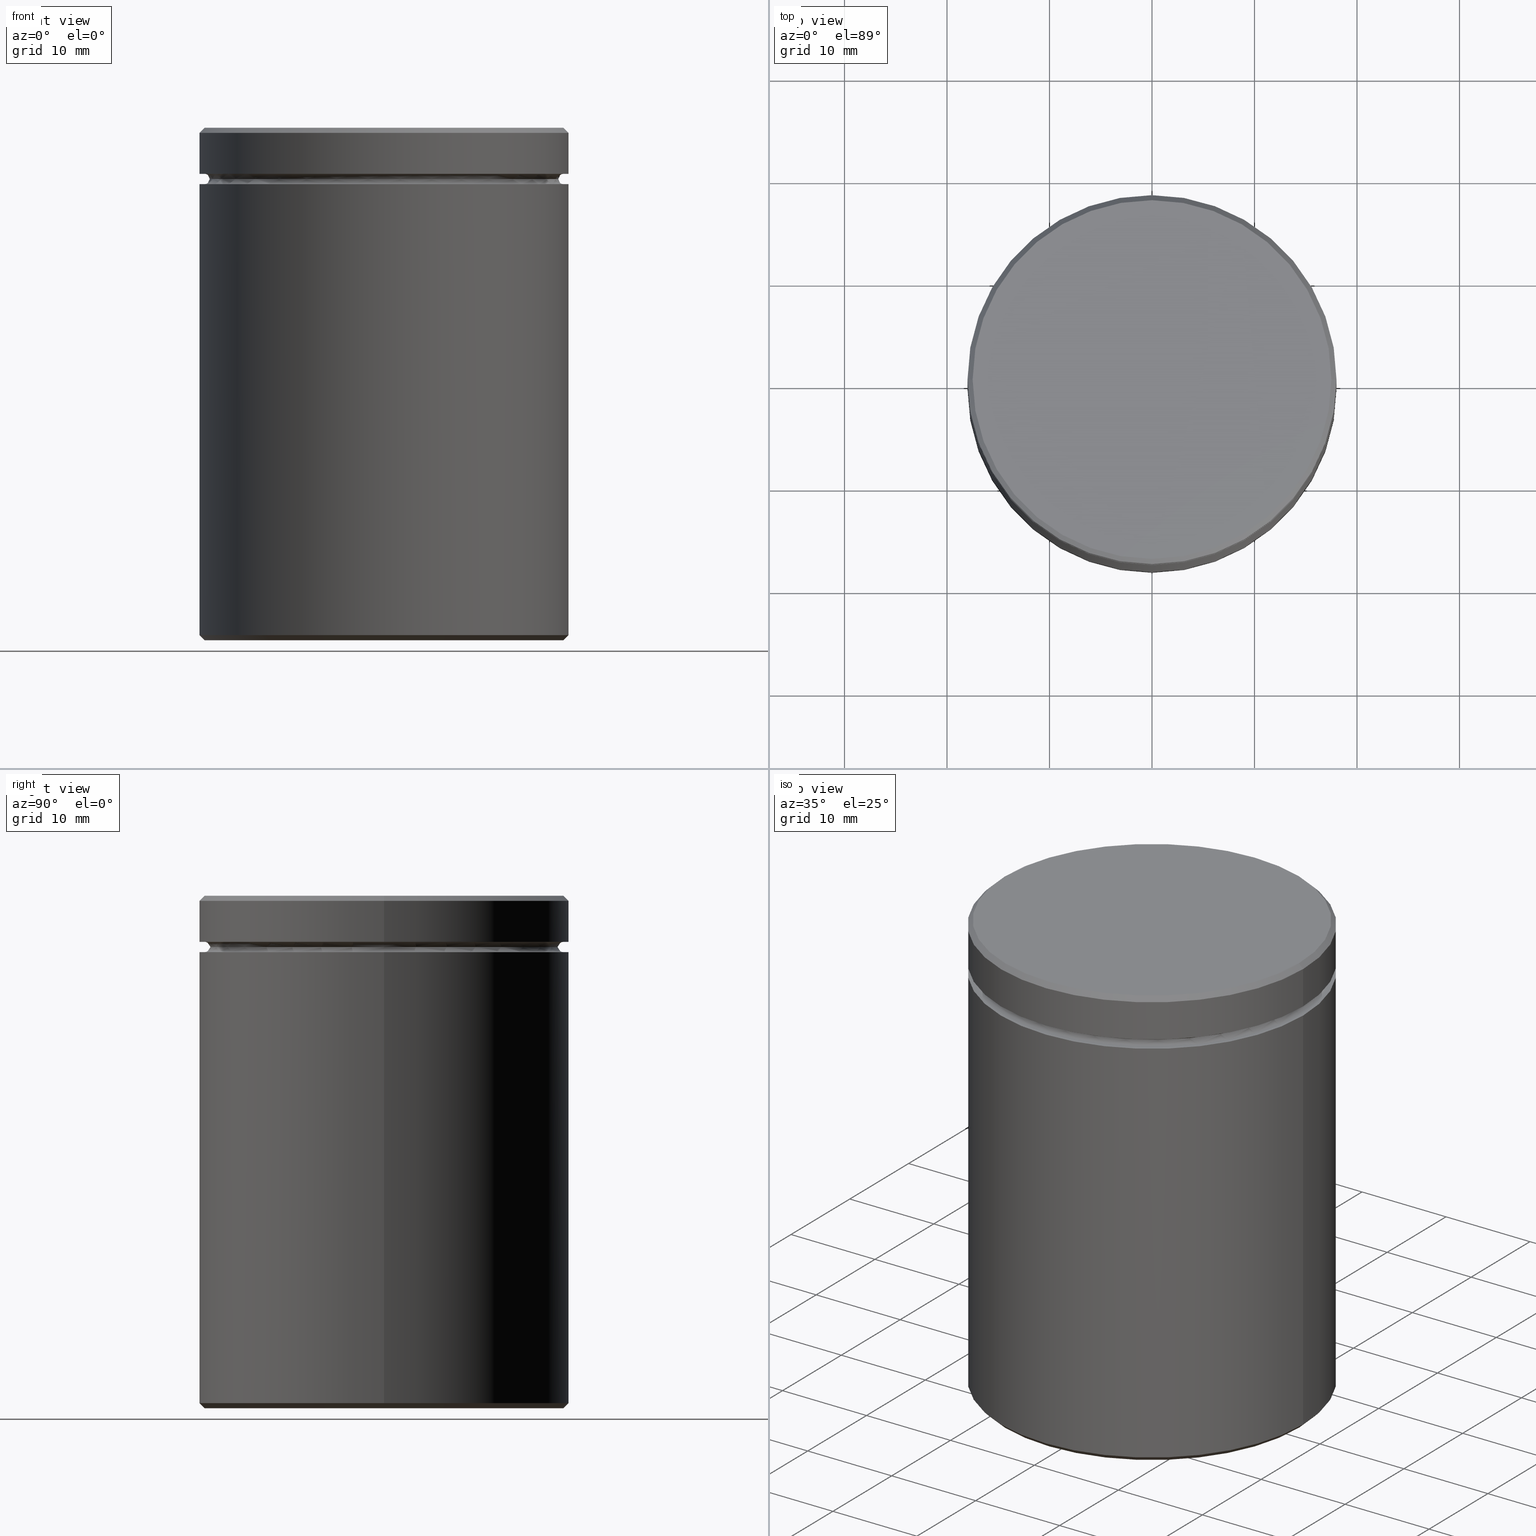
[diagram: canonical four-view strip — front | top / right | iso, engineering-drawing reading convention]
A machine part, canonical four-view strip (front | top / right | iso — engineering-drawing reading convention). The complete STEP part file that produces these views, byte-faithful:
ISO-10303-21;
HEADER;
FILE_DESCRIPTION (( 'STEP AP203' ),
    '1' );
FILE_NAME ('8bd4.STEP',
    '2024-01-02T17:57:47',
    ( '' ),
    ( '' ),
    'SwSTEP 2.0',
    'SolidWorks 2019',
    '' );
FILE_SCHEMA (( 'CONFIG_CONTROL_DESIGN' ));
ENDSEC;

DATA;
#1 = ORGANIZATION ( 'NEUR�EN�', 'NEUR�EN�', '' ) ;
#2 = ORIENTED_EDGE ( 'NONE', *, *, #419, .T. ) ;
#3 = FACE_OUTER_BOUND ( 'NONE', #231, .T. ) ;
#4 = ORIENTED_EDGE ( 'NONE', *, *, #179, .F. ) ;
#5 = EDGE_LOOP ( 'NONE', ( #475, #341, #552, #208 ) ) ;
#6 = PERSON_AND_ORGANIZATION_ROLE ( 'classification_officer' ) ;
#7 = DIRECTION ( 'NONE',  ( -0.000000000000000000, -0.000000000000000000, 1.000000000000000000 ) ) ;
#8 = DIRECTION ( 'NONE',  ( 1.000000000000000000, 0.000000000000000000, 0.000000000000000000 ) ) ;
#9 = EDGE_CURVE ( 'NONE', #113, #339, #252, .T. ) ;
#10 = AXIS2_PLACEMENT_3D ( 'NONE', #82, #288, #547 ) ;
#11 = EDGE_CURVE ( 'NONE', #449, #253, #263, .T. ) ;
#12 = ORIENTED_EDGE ( 'NONE', *, *, #114, .T. ) ;
#13 = LINE ( 'NONE', #500, #28 ) ;
#14 = DIRECTION ( 'NONE',  ( -0.000000000000000000, -0.000000000000000000, 1.000000000000000000 ) ) ;
#15 = LINE ( 'NONE', #104, #275 ) ;
#16 = AXIS2_PLACEMENT_3D ( 'NONE', #165, #111, #74 ) ;
#17 = ORIENTED_EDGE ( 'NONE', *, *, #258, .T. ) ;
#18 = DIRECTION ( 'NONE',  ( -0.000000000000000000, -0.000000000000000000, 1.000000000000000000 ) ) ;
#19 = DIRECTION ( 'NONE',  ( -1.000000000000000000, 0.000000000000000000, 0.000000000000000000 ) ) ;
#20 = CIRCLE ( 'NONE', #73, 16.99999999999999645 ) ;
#21 = VERTEX_POINT ( 'NONE', #143 ) ;
#22 = CC_DESIGN_APPROVAL ( #313, ( #410 ) ) ;
#23 = CARTESIAN_POINT ( 'NONE',  ( 0.000000000000000000, 0.000000000000000000, 0.000000000000000000 ) ) ;
#24 = CARTESIAN_POINT ( 'NONE',  ( 17.50000000000000000, 2.173748068486551641E-15, 0.000000000000000000 ) ) ;
#25 = ADVANCED_FACE ( 'NONE', ( #110, #366 ), #539, .T. ) ;
#26 = ORIENTED_EDGE ( 'NONE', *, *, #452, .T. ) ;
#27 = DIRECTION ( 'NONE',  ( -0.000000000000000000, -0.000000000000000000, -1.000000000000000000 ) ) ;
#28 = VECTOR ( 'NONE', #153, 1000.000000000000000 ) ;
#29 = CARTESIAN_POINT ( 'NONE',  ( 0.000000000000000000, 0.000000000000000000, -4.999999999999999112 ) ) ;
#30 = AXIS2_PLACEMENT_3D ( 'NONE', #210, #384, #556 ) ;
#31 = FACE_OUTER_BOUND ( 'NONE', #5, .T. ) ;
#32 = CARTESIAN_POINT ( 'NONE',  ( 18.00000000000000000, 0.000000000000000000, -49.50000000000000000 ) ) ;
#33 = DATE_AND_TIME ( #125, #545 ) ;
#34 = CARTESIAN_POINT ( 'NONE',  ( 0.000000000000000000, 0.000000000000000000, -4.999999999999999112 ) ) ;
#35 = PERSON_AND_ORGANIZATION_ROLE ( 'design_supplier' ) ;
#36 = ADVANCED_FACE ( 'NONE', ( #461, #65 ), #372, .T. ) ;
#37 = ORIENTED_EDGE ( 'NONE', *, *, #352, .T. ) ;
#38 = ADVANCED_FACE ( 'NONE', ( #308 ), #187, .T. ) ;
#39 = DATE_TIME_ROLE ( 'creation_date' ) ;
#40 = FACE_OUTER_BOUND ( 'NONE', #289, .T. ) ;
#41 = ORIENTED_EDGE ( 'NONE', *, *, #88, .F. ) ;
#42 = AXIS2_PLACEMENT_3D ( 'NONE', #505, #498, #61 ) ;
#43 = TOROIDAL_SURFACE ( 'NONE', #30, 17.49999999999999645, 0.5000000000000000000 ) ;
#44 = DIRECTION ( 'NONE',  ( -0.000000000000000000, -0.000000000000000000, 1.000000000000000000 ) ) ;
#45 = ORIENTED_EDGE ( 'NONE', *, *, #11, .F. ) ;
#46 = EDGE_LOOP ( 'NONE', ( #484, #103, #349, #364 ) ) ;
#47 = ADVANCED_FACE ( 'NONE', ( #568 ), #403, .T. ) ;
#48 = DIRECTION ( 'NONE',  ( -0.7071067811865451302, 8.659560562354903276E-17, 0.7071067811865500152 ) ) ;
#49 = EDGE_CURVE ( 'NONE', #390, #413, #151, .T. ) ;
#50 = AXIS2_PLACEMENT_3D ( 'NONE', #304, #476, #470 ) ;
#51 = CARTESIAN_POINT ( 'NONE',  ( 0.000000000000000000, 0.000000000000000000, -4.999999999999999112 ) ) ;
#52 = CIRCLE ( 'NONE', #441, 12.00000000000000178 ) ;
#53 = AXIS2_PLACEMENT_3D ( 'NONE', #496, #132, #67 ) ;
#54 = COORDINATED_UNIVERSAL_TIME_OFFSET ( 1, 0, .AHEAD. ) ;
#55 = CARTESIAN_POINT ( 'NONE',  ( 0.000000000000000000, 0.000000000000000000, -49.50000000000000000 ) ) ;
#56 = VERTEX_POINT ( 'NONE', #525 ) ;
#57 = DIRECTION ( 'NONE',  ( -0.000000000000000000, -0.000000000000000000, 1.000000000000000000 ) ) ;
#58 = EDGE_CURVE ( 'NONE', #449, #135, #212, .T. ) ;
#59 = ADVANCED_FACE ( 'NONE', ( #40 ), #319, .F. ) ;
#60 = DIRECTION ( 'NONE',  ( -1.000000000000000000, 0.000000000000000000, 0.000000000000000000 ) ) ;
#61 = DIRECTION ( 'NONE',  ( 1.000000000000000000, 0.000000000000000000, 0.000000000000000000 ) ) ;
#62 = ORIENTED_EDGE ( 'NONE', *, *, #486, .F. ) ;
#63 = ORIENTED_EDGE ( 'NONE', *, *, #519, .T. ) ;
#64 = FACE_OUTER_BOUND ( 'NONE', #224, .T. ) ;
#65 = FACE_BOUND ( 'NONE', #190, .T. ) ;
#66 = CIRCLE ( 'NONE', #389, 18.00000000000000000 ) ;
#67 = DIRECTION ( 'NONE',  ( -1.000000000000000000, -1.224646799147349509E-16, 0.000000000000000000 ) ) ;
#68 = CARTESIAN_POINT ( 'NONE',  ( 0.000000000000000000, 0.000000000000000000, -4.500000000000000888 ) ) ;
#69 = ORIENTED_EDGE ( 'NONE', *, *, #352, .F. ) ;
#70 = CARTESIAN_POINT ( 'NONE',  ( 18.00000000000000000, 0.000000000000000000, -49.50000000000000000 ) ) ;
#71 = ADVANCED_FACE ( 'NONE', ( #83 ), #261, .F. ) ;
#72 = DIRECTION ( 'NONE',  ( 1.000000000000000000, 0.000000000000000000, 0.000000000000000000 ) ) ;
#73 = AXIS2_PLACEMENT_3D ( 'NONE', #51, #57, #142 ) ;
#74 = DIRECTION ( 'NONE',  ( 1.000000000000000000, 0.000000000000000000, 0.000000000000000000 ) ) ;
#75 =( GEOMETRIC_REPRESENTATION_CONTEXT ( 3 ) GLOBAL_UNCERTAINTY_ASSIGNED_CONTEXT ( ( #401 ) ) GLOBAL_UNIT_ASSIGNED_CONTEXT ( ( #177, #315, #86 ) ) REPRESENTATION_CONTEXT ( 'NONE', 'WORKASPACE' ) );
#76 = EDGE_CURVE ( 'NONE', #255, #305, #225, .T. ) ;
#77 = ADVANCED_FACE ( 'NONE', ( #465 ), #124, .F. ) ;
#78 = DIRECTION ( 'NONE',  ( -0.000000000000000000, -0.000000000000000000, 1.000000000000000000 ) ) ;
#79 = DIRECTION ( 'NONE',  ( -1.000000000000000000, 0.000000000000000000, 0.000000000000000000 ) ) ;
#80 = CIRCLE ( 'NONE', #172, 12.00000000000000178 ) ;
#81 = CALENDAR_DATE ( 2024, 2, 1 ) ;
#82 = CARTESIAN_POINT ( 'NONE',  ( 0.000000000000000000, 0.000000000000000000, -5.500000000000000000 ) ) ;
#83 = FACE_OUTER_BOUND ( 'NONE', #146, .T. ) ;
#84 = PERSON_AND_ORGANIZATION ( #379, #1 ) ;
#85 = EDGE_CURVE ( 'NONE', #223, #404, #285, .T. ) ;
#86 =( NAMED_UNIT ( * ) SI_UNIT ( $, .STERADIAN. ) SOLID_ANGLE_UNIT ( ) );
#87 = ORIENTED_EDGE ( 'NONE', *, *, #114, .F. ) ;
#88 = EDGE_CURVE ( 'NONE', #305, #255, #66, .T. ) ;
#89 = EDGE_LOOP ( 'NONE', ( #490, #241 ) ) ;
#90 = DIRECTION ( 'NONE',  ( 1.000000000000000000, 0.000000000000000000, 0.000000000000000000 ) ) ;
#91 = AXIS2_PLACEMENT_3D ( 'NONE', #109, #245, #233 ) ;
#92 = PERSON_AND_ORGANIZATION ( #379, #1 ) ;
#93 = ORIENTED_EDGE ( 'NONE', *, *, #244, .T. ) ;
#94 = FACE_OUTER_BOUND ( 'NONE', #201, .T. ) ;
#95 = ORIENTED_EDGE ( 'NONE', *, *, #145, .F. ) ;
#96 = EDGE_LOOP ( 'NONE', ( #215, #527, #130, #248 ) ) ;
#97 = APPROVAL_DATE_TIME ( #330, #106 ) ;
#98 = DIRECTION ( 'NONE',  ( 0.000000000000000000, 0.000000000000000000, -1.000000000000000000 ) ) ;
#99 = CONICAL_SURFACE ( 'NONE', #424, 18.00000000000000000, 0.7853981633974447263 ) ;
#100 = CARTESIAN_POINT ( 'NONE',  ( 0.000000000000000000, 0.000000000000000000, 0.000000000000000000 ) ) ;
#101 = CC_DESIGN_PERSON_AND_ORGANIZATION_ASSIGNMENT ( #92, #6, ( #563 ) ) ;
#102 = CIRCLE ( 'NONE', #91, 17.50000000000000000 ) ;
#103 = ORIENTED_EDGE ( 'NONE', *, *, #334, .F. ) ;
#104 = CARTESIAN_POINT ( 'NONE',  ( -17.50000000000000000, 0.000000000000000000, 0.000000000000000000 ) ) ;
#105 = DIRECTION ( 'NONE',  ( -0.000000000000000000, -0.000000000000000000, 1.000000000000000000 ) ) ;
#106 = APPROVAL ( #184, 'NEUR�EN�' ) ;
#107 = EDGE_LOOP ( 'NONE', ( #359, #557, #93, #181 ) ) ;
#108 = ORIENTED_EDGE ( 'NONE', *, *, #360, .F. ) ;
#109 = CARTESIAN_POINT ( 'NONE',  ( 0.000000000000000000, 0.000000000000000000, -50.00000000000000000 ) ) ;
#110 = FACE_BOUND ( 'NONE', #89, .T. ) ;
#111 = DIRECTION ( 'NONE',  ( -0.000000000000000000, -0.000000000000000000, 1.000000000000000000 ) ) ;
#112 = AXIS2_PLACEMENT_3D ( 'NONE', #186, #44, #392 ) ;
#113 = VERTEX_POINT ( 'NONE', #157 ) ;
#114 = EDGE_CURVE ( 'NONE', #413, #390, #463, .T. ) ;
#115 = DIRECTION ( 'NONE',  ( 0.000000000000000000, 0.000000000000000000, -1.000000000000000000 ) ) ;
#116 = DIRECTION ( 'NONE',  ( 0.000000000000000000, -1.000000000000000000, 0.000000000000000000 ) ) ;
#117 = CARTESIAN_POINT ( 'NONE',  ( 0.000000000000000000, 0.000000000000000000, -4.500000000000000888 ) ) ;
#118 = AXIS2_PLACEMENT_3D ( 'NONE', #129, #7, #438 ) ;
#119 = CARTESIAN_POINT ( 'NONE',  ( 18.00000000000000000, 0.000000000000000000, 0.000000000000000000 ) ) ;
#120 = FACE_OUTER_BOUND ( 'NONE', #450, .T. ) ;
#121 = CARTESIAN_POINT ( 'NONE',  ( 0.000000000000000000, 0.000000000000000000, -18.00000000000000355 ) ) ;
#122 = CC_DESIGN_PERSON_AND_ORGANIZATION_ASSIGNMENT ( #136, #35, ( #333 ) ) ;
#123 = ORIENTED_EDGE ( 'NONE', *, *, #377, .F. ) ;
#124 = TOROIDAL_SURFACE ( 'NONE', #553, 17.49999999999999645, 0.5000000000000000000 ) ;
#125 = CALENDAR_DATE ( 2024, 2, 1 ) ;
#126 = DIRECTION ( 'NONE',  ( 1.000000000000000000, 0.000000000000000000, 0.000000000000000000 ) ) ;
#127 = APPROVAL_PERSON_ORGANIZATION ( #227, #313, #222 ) ;
#128 = MANIFOLD_SOLID_BREP ( 'Zaoblit1', #433 ) ;
#129 = CARTESIAN_POINT ( 'NONE',  ( 0.000000000000000000, 0.000000000000000000, 0.000000000000000000 ) ) ;
#130 = ORIENTED_EDGE ( 'NONE', *, *, #49, .F. ) ;
#131 = ORIENTED_EDGE ( 'NONE', *, *, #314, .F. ) ;
#132 = DIRECTION ( 'NONE',  ( -1.224646799147353207E-16, 1.000000000000000000, 0.000000000000000000 ) ) ;
#133 = ADVANCED_FACE ( 'NONE', ( #432 ), #522, .F. ) ;
#134 = ORIENTED_EDGE ( 'NONE', *, *, #58, .T. ) ;
#135 = VERTEX_POINT ( 'NONE', #370 ) ;
#136 = PERSON_AND_ORGANIZATION ( #379, #1 ) ;
#137 = EDGE_LOOP ( 'NONE', ( #294, #396 ) ) ;
#138 = AXIS2_PLACEMENT_3D ( 'NONE', #121, #508, #79 ) ;
#139 = FACE_OUTER_BOUND ( 'NONE', #226, .T. ) ;
#140 = CIRCLE ( 'NONE', #523, 17.50000000000000000 ) ;
#141 = ORIENTED_EDGE ( 'NONE', *, *, #452, .F. ) ;
#142 = DIRECTION ( 'NONE',  ( 1.000000000000000000, 0.000000000000000000, 0.000000000000000000 ) ) ;
#143 = CARTESIAN_POINT ( 'NONE',  ( -12.00000000000000178, 0.000000000000000000, -18.00000000000000355 ) ) ;
#144 = DATE_TIME_ROLE ( 'classification_date' ) ;
#145 = EDGE_CURVE ( 'NONE', #407, #318, #52, .T. ) ;
#146 = EDGE_LOOP ( 'NONE', ( #385, #239, #235, #243 ) ) ;
#147 = DIRECTION ( 'NONE',  ( -0.7071067811865376918, 0.000000000000000000, -0.7071067811865574537 ) ) ;
#148 = EDGE_CURVE ( 'NONE', #309, #135, #268, .T. ) ;
#149 = CARTESIAN_POINT ( 'NONE',  ( 0.000000000000000000, 0.000000000000000000, -5.000000000000000888 ) ) ;
#150 = CARTESIAN_POINT ( 'NONE',  ( -17.49999999999999645, 2.143131898507867854E-15, -4.999999999999999112 ) ) ;
#151 = CIRCLE ( 'NONE', #112, 18.00000000000000000 ) ;
#152 = AXIS2_PLACEMENT_3D ( 'NONE', #117, #300, #506 ) ;
#153 = DIRECTION ( 'NONE',  ( -0.000000000000000000, -0.000000000000000000, 1.000000000000000000 ) ) ;
#154 = LINE ( 'NONE', #206, #489 ) ;
#155 = ORIENTED_EDGE ( 'NONE', *, *, #542, .T. ) ;
#156 = ORIENTED_EDGE ( 'NONE', *, *, #148, .F. ) ;
#157 = CARTESIAN_POINT ( 'NONE',  ( 16.99999999999999645, 0.000000000000000000, -4.999999999999999112 ) ) ;
#158 = CARTESIAN_POINT ( 'NONE',  ( -18.00000000000000000, 2.204364238465235428E-15, 0.000000000000000000 ) ) ;
#159 = AXIS2_PLACEMENT_3D ( 'NONE', #100, #18, #416 ) ;
#160 = EDGE_LOOP ( 'NONE', ( #37, #63 ) ) ;
#161 = DIRECTION ( 'NONE',  ( 0.000000000000000000, 0.000000000000000000, -1.000000000000000000 ) ) ;
#162 = ORIENTED_EDGE ( 'NONE', *, *, #334, .T. ) ;
#163 = CARTESIAN_POINT ( 'NONE',  ( 17.49999999999999645, 0.000000000000000000, -4.999999999999999112 ) ) ;
#164 = DIRECTION ( 'NONE',  ( -0.000000000000000000, -0.000000000000000000, 1.000000000000000000 ) ) ;
#165 = CARTESIAN_POINT ( 'NONE',  ( 0.000000000000000000, 0.000000000000000000, -4.500000000000000888 ) ) ;
#166 = ADVANCED_FACE ( 'NONE', ( #120 ), #170, .T. ) ;
#167 = DIRECTION ( 'NONE',  ( 1.000000000000000000, 0.000000000000000000, 0.000000000000000000 ) ) ;
#168 = CIRCLE ( 'NONE', #488, 0.5000000000000004441 ) ;
#169 = DIRECTION ( 'NONE',  ( -0.000000000000000000, -0.000000000000000000, 1.000000000000000000 ) ) ;
#170 = CYLINDRICAL_SURFACE ( 'NONE', #453, 18.00000000000000000 ) ;
#171 = ORIENTED_EDGE ( 'NONE', *, *, #348, .T. ) ;
#172 = AXIS2_PLACEMENT_3D ( 'NONE', #264, #429, #559 ) ;
#173 = DIRECTION ( 'NONE',  ( 0.000000000000000000, 0.000000000000000000, 1.000000000000000000 ) ) ;
#174 = APPLICATION_CONTEXT ( 'configuration controlled 3d designs of mechanical parts and assemblies' ) ;
#175 = AXIS2_PLACEMENT_3D ( 'NONE', #536, #284, #60 ) ;
#176 = VERTEX_POINT ( 'NONE', #430 ) ;
#177 =( LENGTH_UNIT ( ) NAMED_UNIT ( * ) SI_UNIT ( .MILLI., .METRE. ) );
#178 = CIRCLE ( 'NONE', #246, 17.50000000000000000 ) ;
#179 = EDGE_CURVE ( 'NONE', #113, #404, #343, .T. ) ;
#180 = CIRCLE ( 'NONE', #152, 17.49999999999999645 ) ;
#181 = ORIENTED_EDGE ( 'NONE', *, *, #519, .F. ) ;
#182 = CYLINDRICAL_SURFACE ( 'NONE', #189, 18.00000000000000000 ) ;
#183 = ADVANCED_FACE ( 'NONE', ( #139 ), #250, .T. ) ;
#184 = APPROVAL_STATUS ( 'not_yet_approved' ) ;
#185 = AXIS2_PLACEMENT_3D ( 'NONE', #188, #412, #521 ) ;
#186 = CARTESIAN_POINT ( 'NONE',  ( 0.000000000000000000, 0.000000000000000000, -49.50000000000000000 ) ) ;
#187 = CONICAL_SURFACE ( 'NONE', #198, 17.50000000000000000, 0.7853981633974344012 ) ;
#188 = CARTESIAN_POINT ( 'NONE',  ( 0.000000000000000000, 0.000000000000000000, 0.000000000000000000 ) ) ;
#189 = AXIS2_PLACEMENT_3D ( 'NONE', #529, #213, #388 ) ;
#190 = EDGE_LOOP ( 'NONE', ( #95, #442 ) ) ;
#191 = DIRECTION ( 'NONE',  ( -1.000000000000000000, 1.224646799147349509E-16, 0.000000000000000000 ) ) ;
#192 = DIRECTION ( 'NONE',  ( 1.000000000000000000, 0.000000000000000000, 0.000000000000000000 ) ) ;
#193 = EDGE_CURVE ( 'NONE', #253, #309, #15, .T. ) ;
#194 = CARTESIAN_POINT ( 'NONE',  ( 0.000000000000000000, 0.000000000000000000, -18.00000000000000355 ) ) ;
#195 = AXIS2_PLACEMENT_3D ( 'NONE', #204, #115, #418 ) ;
#196 = ORIENTED_EDGE ( 'NONE', *, *, #85, .F. ) ;
#197 = CARTESIAN_POINT ( 'NONE',  ( -17.49999999999999645, 0.000000000000000000, -5.000000000000000888 ) ) ;
#198 = AXIS2_PLACEMENT_3D ( 'NONE', #220, #270, #394 ) ;
#199 = EDGE_CURVE ( 'NONE', #276, #413, #446, .T. ) ;
#200 = CARTESIAN_POINT ( 'NONE',  ( 0.000000000000000000, 0.000000000000000000, -0.5000000000000108802 ) ) ;
#201 = EDGE_LOOP ( 'NONE', ( #141, #12, #171, #281 ) ) ;
#202 = PLANE ( 'NONE',  #185 ) ;
#203 = ADVANCED_FACE ( 'NONE', ( #94 ), #287, .T. ) ;
#204 = CARTESIAN_POINT ( 'NONE',  ( 0.000000000000000000, 18.00000000000000000, -4.500000000000000888 ) ) ;
#205 = ORIENTED_EDGE ( 'NONE', *, *, #314, .T. ) ;
#206 = CARTESIAN_POINT ( 'NONE',  ( 12.00000000000000178, 1.469576158976824144E-15, -18.00000000000000355 ) ) ;
#207 = CIRCLE ( 'NONE', #175, 12.00000000000000178 ) ;
#208 = ORIENTED_EDGE ( 'NONE', *, *, #266, .F. ) ;
#209 = CC_DESIGN_PERSON_AND_ORGANIZATION_ASSIGNMENT ( #393, #269, ( #333 ) ) ;
#210 = CARTESIAN_POINT ( 'NONE',  ( 0.000000000000000000, 0.000000000000000000, -5.000000000000000888 ) ) ;
#211 = LINE ( 'NONE', #158, #221 ) ;
#212 = LINE ( 'NONE', #381, #473 ) ;
#213 = DIRECTION ( 'NONE',  ( -0.000000000000000000, -0.000000000000000000, 1.000000000000000000 ) ) ;
#214 = AXIS2_PLACEMENT_3D ( 'NONE', #194, #98, #290 ) ;
#215 = ORIENTED_EDGE ( 'NONE', *, *, #562, .F. ) ;
#216 = APPROVAL_DATE_TIME ( #267, #234 ) ;
#217 = DIRECTION ( 'NONE',  ( -1.000000000000000000, 0.000000000000000000, -0.000000000000000000 ) ) ;
#218 = DIRECTION ( 'NONE',  ( -0.000000000000000000, -0.000000000000000000, 1.000000000000000000 ) ) ;
#219 = EDGE_CURVE ( 'NONE', #466, #309, #13, .T. ) ;
#220 = CARTESIAN_POINT ( 'NONE',  ( 0.000000000000000000, 0.000000000000000000, 0.000000000000000000 ) ) ;
#221 = VECTOR ( 'NONE', #295, 1000.000000000000000 ) ;
#222 = APPROVAL_ROLE ( '' ) ;
#223 = VERTEX_POINT ( 'NONE', #538 ) ;
#224 = EDGE_LOOP ( 'NONE', ( #162, #448 ) ) ;
#225 = CIRCLE ( 'NONE', #509, 18.00000000000000000 ) ;
#226 = EDGE_LOOP ( 'NONE', ( #17, #2 ) ) ;
#227 = PERSON_AND_ORGANIZATION ( #379, #1 ) ;
#228 = ORIENTED_EDGE ( 'NONE', *, *, #302, .F. ) ;
#229 = CIRCLE ( 'NONE', #311, 18.00000000000000000 ) ;
#230 = ORIENTED_EDGE ( 'NONE', *, *, #219, .T. ) ;
#231 = EDGE_LOOP ( 'NONE', ( #415, #26, #41, #566 ) ) ;
#232 = CIRCLE ( 'NONE', #50, 17.49999999999999645 ) ;
#233 = DIRECTION ( 'NONE',  ( -1.000000000000000000, 0.000000000000000000, 0.000000000000000000 ) ) ;
#234 = APPROVAL ( #443, 'NEUR�EN�' ) ;
#235 = ORIENTED_EDGE ( 'NONE', *, *, #266, .T. ) ;
#236 = AXIS2_PLACEMENT_3D ( 'NONE', #251, #417, #217 ) ;
#237 = DIRECTION ( 'NONE',  ( -0.000000000000000000, -0.000000000000000000, -1.000000000000000000 ) ) ;
#238 = LOCAL_TIME ( 18, 57, 47.00000000000000000, #440 ) ;
#239 = ORIENTED_EDGE ( 'NONE', *, *, #258, .F. ) ;
#240 = DIRECTION ( 'NONE',  ( 0.000000000000000000, 0.000000000000000000, -1.000000000000000000 ) ) ;
#241 = ORIENTED_EDGE ( 'NONE', *, *, #85, .T. ) ;
#242 = COORDINATED_UNIVERSAL_TIME_OFFSET ( 1, 0, .AHEAD. ) ;
#243 = ORIENTED_EDGE ( 'NONE', *, *, #145, .T. ) ;
#244 = EDGE_CURVE ( 'NONE', #56, #176, #406, .T. ) ;
#245 = DIRECTION ( 'NONE',  ( 0.000000000000000000, 0.000000000000000000, -1.000000000000000000 ) ) ;
#246 = AXIS2_PLACEMENT_3D ( 'NONE', #23, #405, #8 ) ;
#247 = DIRECTION ( 'NONE',  ( 0.000000000000000000, 0.000000000000000000, -1.000000000000000000 ) ) ;
#248 = ORIENTED_EDGE ( 'NONE', *, *, #456, .F. ) ;
#249 = ORIENTED_EDGE ( 'NONE', *, *, #323, .T. ) ;
#250 = PLANE ( 'NONE',  #214 ) ;
#251 = CARTESIAN_POINT ( 'NONE',  ( 0.000000000000000000, 18.00000000000000000, -50.00000000000000000 ) ) ;
#252 = CIRCLE ( 'NONE', #53, 0.5000000000000004441 ) ;
#253 = VERTEX_POINT ( 'NONE', #363 ) ;
#254 = LOCAL_TIME ( 18, 57, 47.00000000000000000, #398 ) ;
#255 = VERTEX_POINT ( 'NONE', #367 ) ;
#256 = CARTESIAN_POINT ( 'NONE',  ( -18.00000000000000000, 2.204364238465235428E-15, -49.50000000000000000 ) ) ;
#257 = CARTESIAN_POINT ( 'NONE',  ( -18.00000000000000000, 2.204364238465235428E-15, -4.500000000000000888 ) ) ;
#258 = EDGE_CURVE ( 'NONE', #21, #321, #207, .T. ) ;
#259 = AXIS2_PLACEMENT_3D ( 'NONE', #423, #265, #378 ) ;
#260 = ADVANCED_FACE ( 'NONE', ( #328 ), #293, .T. ) ;
#261 = CYLINDRICAL_SURFACE ( 'NONE', #138, 12.00000000000000178 ) ;
#262 = FACE_OUTER_BOUND ( 'NONE', #96, .T. ) ;
#263 = CIRCLE ( 'NONE', #561, 17.50000000000000000 ) ;
#264 = CARTESIAN_POINT ( 'NONE',  ( 0.000000000000000000, 0.000000000000000000, -50.00000000000000000 ) ) ;
#265 = DIRECTION ( 'NONE',  ( 0.000000000000000000, 0.000000000000000000, -1.000000000000000000 ) ) ;
#266 = EDGE_CURVE ( 'NONE', #21, #407, #491, .T. ) ;
#267 = DATE_AND_TIME ( #81, #254 ) ;
#268 = CIRCLE ( 'NONE', #543, 18.00000000000000000 ) ;
#269 = PERSON_AND_ORGANIZATION_ROLE ( 'creator' ) ;
#270 = DIRECTION ( 'NONE',  ( 0.000000000000000000, 0.000000000000000000, -1.000000000000000000 ) ) ;
#271 = ORIENTED_EDGE ( 'NONE', *, *, #179, .T. ) ;
#272 = MECHANICAL_CONTEXT ( 'NONE', #278, 'mechanical' ) ;
#273 = ADVANCED_FACE ( 'NONE', ( #541 ), #528, .T. ) ;
#274 = APPLICATION_PROTOCOL_DEFINITION ( 'international standard', 'config_control_design', 1994, #174 ) ;
#275 = VECTOR ( 'NONE', #147, 999.9999999999998863 ) ;
#276 = VERTEX_POINT ( 'NONE', #332 ) ;
#277 = CC_DESIGN_APPROVAL ( #234, ( #333 ) ) ;
#278 = APPLICATION_CONTEXT ( 'configuration controlled 3d designs of mechanical parts and assemblies' ) ;
#279 = ORIENTED_EDGE ( 'NONE', *, *, #148, .T. ) ;
#280 = CARTESIAN_POINT ( 'NONE',  ( 0.000000000000000000, 0.000000000000000000, 0.000000000000000000 ) ) ;
#281 = ORIENTED_EDGE ( 'NONE', *, *, #76, .F. ) ;
#282 = DATE_AND_TIME ( #540, #397 ) ;
#283 = DIRECTION ( 'NONE',  ( -0.000000000000000000, -0.000000000000000000, 1.000000000000000000 ) ) ;
#284 = DIRECTION ( 'NONE',  ( 0.000000000000000000, 0.000000000000000000, -1.000000000000000000 ) ) ;
#285 = CIRCLE ( 'NONE', #10, 17.49999999999999645 ) ;
#286 = CARTESIAN_POINT ( 'NONE',  ( -18.00000000000000000, 2.204364238465235428E-15, -49.50000000000000000 ) ) ;
#287 = CYLINDRICAL_SURFACE ( 'NONE', #159, 18.00000000000000000 ) ;
#288 = DIRECTION ( 'NONE',  ( 0.000000000000000000, 0.000000000000000000, -1.000000000000000000 ) ) ;
#289 = EDGE_LOOP ( 'NONE', ( #228, #249, #123, #4 ) ) ;
#290 = DIRECTION ( 'NONE',  ( -1.000000000000000000, 0.000000000000000000, -0.000000000000000000 ) ) ;
#291 = DIRECTION ( 'NONE',  ( 1.000000000000000000, 0.000000000000000000, 0.000000000000000000 ) ) ;
#292 = DIRECTION ( 'NONE',  ( -0.000000000000000000, -0.000000000000000000, 1.000000000000000000 ) ) ;
#293 = CONICAL_SURFACE ( 'NONE', #310, 18.00000000000000000, 0.7853981633974447263 ) ;
#294 = ORIENTED_EDGE ( 'NONE', *, *, #88, .T. ) ;
#295 = DIRECTION ( 'NONE',  ( -0.000000000000000000, -0.000000000000000000, 1.000000000000000000 ) ) ;
#296 = CARTESIAN_POINT ( 'NONE',  ( 0.000000000000000000, 0.000000000000000000, -5.500000000000000000 ) ) ;
#297 = CARTESIAN_POINT ( 'NONE',  ( 0.000000000000000000, 0.000000000000000000, -0.5000000000000108802 ) ) ;
#298 = DIRECTION ( 'NONE',  ( -1.000000000000000000, 0.000000000000000000, 0.000000000000000000 ) ) ;
#299 = ORIENTED_EDGE ( 'NONE', *, *, #302, .T. ) ;
#300 = DIRECTION ( 'NONE',  ( -0.000000000000000000, -0.000000000000000000, 1.000000000000000000 ) ) ;
#301 = AXIS2_PLACEMENT_3D ( 'NONE', #163, #116, #471 ) ;
#302 = EDGE_CURVE ( 'NONE', #56, #113, #20, .T. ) ;
#303 = CC_DESIGN_APPROVAL ( #106, ( #563 ) ) ;
#304 = CARTESIAN_POINT ( 'NONE',  ( 0.000000000000000000, 0.000000000000000000, -5.500000000000000000 ) ) ;
#305 = VERTEX_POINT ( 'NONE', #414 ) ;
#306 = DATE_AND_TIME ( #437, #238 ) ;
#307 = CARTESIAN_POINT ( 'NONE',  ( 0.000000000000000000, 0.000000000000000000, 0.000000000000000000 ) ) ;
#308 = FACE_OUTER_BOUND ( 'NONE', #531, .T. ) ;
#309 = VERTEX_POINT ( 'NONE', #504 ) ;
#310 = AXIS2_PLACEMENT_3D ( 'NONE', #451, #455, #497 ) ;
#311 = AXIS2_PLACEMENT_3D ( 'NONE', #312, #169, #391 ) ;
#312 = CARTESIAN_POINT ( 'NONE',  ( 0.000000000000000000, 0.000000000000000000, -4.500000000000000888 ) ) ;
#313 = APPROVAL ( #317, 'NEUR�EN�' ) ;
#314 = EDGE_CURVE ( 'NONE', #520, #135, #324, .T. ) ;
#315 =( NAMED_UNIT ( * ) PLANE_ANGLE_UNIT ( ) SI_UNIT ( $, .RADIAN. ) );
#316 = EDGE_LOOP ( 'NONE', ( #327, #108 ) ) ;
#317 = APPROVAL_STATUS ( 'not_yet_approved' ) ;
#318 = VERTEX_POINT ( 'NONE', #493 ) ;
#319 = TOROIDAL_SURFACE ( 'NONE', #380, 17.49999999999999645, 0.5000000000000000000 ) ;
#320 = CARTESIAN_POINT ( 'NONE',  ( 12.00000000000000178, 1.469576158976824144E-15, -18.00000000000000355 ) ) ;
#321 = VERTEX_POINT ( 'NONE', #320 ) ;
#322 = EDGE_CURVE ( 'NONE', #345, #276, #102, .T. ) ;
#323 = EDGE_CURVE ( 'NONE', #56, #223, #168, .T. ) ;
#324 = LINE ( 'NONE', #409, #355 ) ;
#325 = VECTOR ( 'NONE', #78, 1000.000000000000000 ) ;
#326 = SHAPE_DEFINITION_REPRESENTATION ( #329, #512 ) ;
#327 = ORIENTED_EDGE ( 'NONE', *, *, #542, .F. ) ;
#328 = FACE_OUTER_BOUND ( 'NONE', #382, .T. ) ;
#329 = PRODUCT_DEFINITION_SHAPE ( 'NONE', 'NONE',  #410 ) ;
#330 = DATE_AND_TIME ( #411, #344 ) ;
#331 = AXIS2_PLACEMENT_3D ( 'NONE', #280, #240, #458 ) ;
#332 = CARTESIAN_POINT ( 'NONE',  ( -17.50000000000000000, 2.173748068486551641E-15, -50.00000000000000000 ) ) ;
#333 = PRODUCT_DEFINITION_FORMATION_WITH_SPECIFIED_SOURCE ( 'LIBOVOLN�', '', #422, .NOT_KNOWN. ) ;
#334 = EDGE_CURVE ( 'NONE', #253, #449, #178, .T. ) ;
#335 = DIRECTION ( 'NONE',  ( -0.000000000000000000, -1.000000000000000000, -0.000000000000000000 ) ) ;
#336 = PRODUCT_RELATED_PRODUCT_CATEGORY ( 'detail', '', ( #422 ) ) ;
#337 = FACE_OUTER_BOUND ( 'NONE', #361, .T. ) ;
#338 = AXIS2_PLACEMENT_3D ( 'NONE', #68, #292, #464 ) ;
#339 = VERTEX_POINT ( 'NONE', #460 ) ;
#340 = ADVANCED_FACE ( 'NONE', ( #64 ), #202, .T. ) ;
#341 = ORIENTED_EDGE ( 'NONE', *, *, #462, .T. ) ;
#342 = DIRECTION ( 'NONE',  ( -1.000000000000000000, 0.000000000000000000, 0.000000000000000000 ) ) ;
#343 = CIRCLE ( 'NONE', #301, 0.5000000000000004441 ) ;
#344 = LOCAL_TIME ( 18, 57, 47.00000000000000000, #54 ) ;
#345 = VERTEX_POINT ( 'NONE', #386 ) ;
#346 = FACE_OUTER_BOUND ( 'NONE', #316, .T. ) ;
#347 = DIRECTION ( 'NONE',  ( 1.000000000000000000, 0.000000000000000000, 0.000000000000000000 ) ) ;
#348 = EDGE_CURVE ( 'NONE', #390, #305, #371, .T. ) ;
#349 = ORIENTED_EDGE ( 'NONE', *, *, #193, .T. ) ;
#350 = CARTESIAN_POINT ( 'NONE',  ( -12.00000000000000178, 0.000000000000000000, -50.00000000000000000 ) ) ;
#351 = VECTOR ( 'NONE', #48, 1000.000000000000114 ) ;
#352 = EDGE_CURVE ( 'NONE', #176, #339, #459, .T. ) ;
#353 = SECURITY_CLASSIFICATION_LEVEL ( 'unclassified' ) ;
#354 = EDGE_CURVE ( 'NONE', #318, #407, #80, .T. ) ;
#355 = VECTOR ( 'NONE', #369, 1000.000000000000000 ) ;
#356 = ORIENTED_EDGE ( 'NONE', *, *, #562, .T. ) ;
#357 = CIRCLE ( 'NONE', #434, 16.99999999999999645 ) ;
#358 = PERSON_AND_ORGANIZATION_ROLE ( 'creator' ) ;
#359 = ORIENTED_EDGE ( 'NONE', *, *, #9, .F. ) ;
#360 = EDGE_CURVE ( 'NONE', #466, #520, #479, .T. ) ;
#361 = EDGE_LOOP ( 'NONE', ( #299, #537, #69, #402 ) ) ;
#362 = APPROVAL_PERSON_ORGANIZATION ( #533, #106, #501 ) ;
#363 = CARTESIAN_POINT ( 'NONE',  ( -17.50000000000000000, 0.000000000000000000, 0.000000000000000000 ) ) ;
#364 = ORIENTED_EDGE ( 'NONE', *, *, #387, .F. ) ;
#365 = DIRECTION ( 'NONE',  ( 0.000000000000000000, 0.000000000000000000, -1.000000000000000000 ) ) ;
#366 = FACE_OUTER_BOUND ( 'NONE', #137, .T. ) ;
#367 = CARTESIAN_POINT ( 'NONE',  ( -18.00000000000000000, 2.204364238465235428E-15, -5.500000000000000000 ) ) ;
#368 = DIRECTION ( 'NONE',  ( 1.000000000000000000, 0.000000000000000000, 0.000000000000000000 ) ) ;
#369 = DIRECTION ( 'NONE',  ( -0.000000000000000000, -0.000000000000000000, 1.000000000000000000 ) ) ;
#370 = CARTESIAN_POINT ( 'NONE',  ( 18.00000000000000000, 0.000000000000000000, -0.5000000000000108802 ) ) ;
#371 = LINE ( 'NONE', #119, #325 ) ;
#372 = PLANE ( 'NONE',  #236 ) ;
#373 = DIRECTION ( 'NONE',  ( 0.000000000000000000, 0.000000000000000000, -1.000000000000000000 ) ) ;
#374 = CARTESIAN_POINT ( 'NONE',  ( 0.000000000000000000, 0.000000000000000000, 0.000000000000000000 ) ) ;
#375 = DIRECTION ( 'NONE',  ( 1.000000000000000000, 0.000000000000000000, 0.000000000000000000 ) ) ;
#376 = CIRCLE ( 'NONE', #447, 18.00000000000000000 ) ;
#377 = EDGE_CURVE ( 'NONE', #404, #223, #232, .T. ) ;
#378 = DIRECTION ( 'NONE',  ( -1.000000000000000000, 0.000000000000000000, 0.000000000000000000 ) ) ;
#379 = PERSON ( 'NEUR�EN�', 'NEUR�EN�', 'NEUR�EN�', ('NEUR�EN�'), ('NEUR�EN�'), ('NEUR�EN�') ) ;
#380 = AXIS2_PLACEMENT_3D ( 'NONE', #564, #14, #192 ) ;
#381 = CARTESIAN_POINT ( 'NONE',  ( 17.50000000000000000, 2.143131898507868248E-15, 0.000000000000000000 ) ) ;
#382 = EDGE_LOOP ( 'NONE', ( #544, #555, #439, #87 ) ) ;
#383 = DIRECTION ( 'NONE',  ( 0.000000000000000000, 0.000000000000000000, -1.000000000000000000 ) ) ;
#384 = DIRECTION ( 'NONE',  ( 0.000000000000000000, 0.000000000000000000, -1.000000000000000000 ) ) ;
#385 = ORIENTED_EDGE ( 'NONE', *, *, #462, .F. ) ;
#386 = CARTESIAN_POINT ( 'NONE',  ( 17.50000000000000000, 0.000000000000000000, -50.00000000000000000 ) ) ;
#387 = EDGE_CURVE ( 'NONE', #135, #309, #376, .T. ) ;
#388 = DIRECTION ( 'NONE',  ( 1.000000000000000000, 0.000000000000000000, 0.000000000000000000 ) ) ;
#389 = AXIS2_PLACEMENT_3D ( 'NONE', #444, #283, #502 ) ;
#390 = VERTEX_POINT ( 'NONE', #70 ) ;
#391 = DIRECTION ( 'NONE',  ( 1.000000000000000000, 0.000000000000000000, 0.000000000000000000 ) ) ;
#392 = DIRECTION ( 'NONE',  ( -1.000000000000000000, 0.000000000000000000, 0.000000000000000000 ) ) ;
#393 = PERSON_AND_ORGANIZATION ( #379, #1 ) ;
#394 = DIRECTION ( 'NONE',  ( -1.000000000000000000, 0.000000000000000000, 0.000000000000000000 ) ) ;
#395 = AXIS2_PLACEMENT_3D ( 'NONE', #55, #514, #298 ) ;
#396 = ORIENTED_EDGE ( 'NONE', *, *, #76, .T. ) ;
#397 = LOCAL_TIME ( 18, 57, 47.00000000000000000, #242 ) ;
#398 = COORDINATED_UNIVERSAL_TIME_OFFSET ( 1, 0, .AHEAD. ) ;
#399 = ADVANCED_FACE ( 'NONE', ( #262 ), #99, .T. ) ;
#400 = EDGE_LOOP ( 'NONE', ( #445, #62, #271, #196 ) ) ;
#401 = UNCERTAINTY_MEASURE_WITH_UNIT (LENGTH_MEASURE( 1.000000000000000082E-05 ), #177, 'distance_accuracy_value', 'NONE');
#402 = ORIENTED_EDGE ( 'NONE', *, *, #244, .F. ) ;
#403 = CYLINDRICAL_SURFACE ( 'NONE', #118, 18.00000000000000000 ) ;
#404 = VERTEX_POINT ( 'NONE', #518 ) ;
#405 = DIRECTION ( 'NONE',  ( -0.000000000000000000, -0.000000000000000000, 1.000000000000000000 ) ) ;
#406 = CIRCLE ( 'NONE', #426, 0.5000000000000004441 ) ;
#407 = VERTEX_POINT ( 'NONE', #350 ) ;
#408 = ORIENTED_EDGE ( 'NONE', *, *, #322, .T. ) ;
#409 = CARTESIAN_POINT ( 'NONE',  ( 18.00000000000000000, 0.000000000000000000, 0.000000000000000000 ) ) ;
#410 = PRODUCT_DEFINITION ( 'NEZN�M�', '', #333, #507 ) ;
#411 = CALENDAR_DATE ( 2024, 2, 1 ) ;
#412 = DIRECTION ( 'NONE',  ( 0.000000000000000000, -0.000000000000000000, 1.000000000000000000 ) ) ;
#413 = VERTEX_POINT ( 'NONE', #256 ) ;
#414 = CARTESIAN_POINT ( 'NONE',  ( 18.00000000000000000, 0.000000000000000000, -5.500000000000000000 ) ) ;
#415 = ORIENTED_EDGE ( 'NONE', *, *, #49, .T. ) ;
#416 = DIRECTION ( 'NONE',  ( 1.000000000000000000, 0.000000000000000000, 0.000000000000000000 ) ) ;
#417 = DIRECTION ( 'NONE',  ( 0.000000000000000000, 0.000000000000000000, -1.000000000000000000 ) ) ;
#418 = DIRECTION ( 'NONE',  ( -1.000000000000000000, 0.000000000000000000, -0.000000000000000000 ) ) ;
#419 = EDGE_CURVE ( 'NONE', #321, #21, #494, .T. ) ;
#420 = ADVANCED_FACE ( 'NONE', ( #554, #346 ), #550, .T. ) ;
#421 = ORIENTED_EDGE ( 'NONE', *, *, #193, .F. ) ;
#422 = PRODUCT ( '8bd4', '8bd4', '', ( #272 ) ) ;
#423 = CARTESIAN_POINT ( 'NONE',  ( 0.000000000000000000, 0.000000000000000000, -18.00000000000000355 ) ) ;
#424 = AXIS2_PLACEMENT_3D ( 'NONE', #549, #425, #375 ) ;
#425 = DIRECTION ( 'NONE',  ( -0.000000000000000000, -0.000000000000000000, 1.000000000000000000 ) ) ;
#426 = AXIS2_PLACEMENT_3D ( 'NONE', #197, #335, #365 ) ;
#427 = AXIS2_PLACEMENT_3D ( 'NONE', #307, #173, #90 ) ;
#428 = ADVANCED_FACE ( 'NONE', ( #31 ), #472, .F. ) ;
#429 = DIRECTION ( 'NONE',  ( 0.000000000000000000, 0.000000000000000000, -1.000000000000000000 ) ) ;
#430 = CARTESIAN_POINT ( 'NONE',  ( -17.49999999999999645, 0.000000000000000000, -4.500000000000000888 ) ) ;
#431 = CARTESIAN_POINT ( 'NONE',  ( 0.000000000000000000, 0.000000000000000000, -18.00000000000000355 ) ) ;
#432 = FACE_OUTER_BOUND ( 'NONE', #107, .T. ) ;
#433 = CLOSED_SHELL ( 'NONE', ( #482, #59, #399, #38, #428, #530, #47, #36, #340, #166, #420, #25, #203, #71, #183, #273, #260, #77, #133 ) ) ;
#434 = AXIS2_PLACEMENT_3D ( 'NONE', #29, #164, #347 ) ;
#435 = APPLICATION_PROTOCOL_DEFINITION ( 'international standard', 'config_control_design', 1994, #278 ) ;
#436 = EDGE_LOOP ( 'NONE', ( #408, #356 ) ) ;
#437 = CALENDAR_DATE ( 2024, 2, 1 ) ;
#438 = DIRECTION ( 'NONE',  ( 1.000000000000000000, 0.000000000000000000, 0.000000000000000000 ) ) ;
#439 = ORIENTED_EDGE ( 'NONE', *, *, #456, .T. ) ;
#440 = COORDINATED_UNIVERSAL_TIME_OFFSET ( 1, 0, .AHEAD. ) ;
#441 = AXIS2_PLACEMENT_3D ( 'NONE', #548, #247, #19 ) ;
#442 = ORIENTED_EDGE ( 'NONE', *, *, #354, .F. ) ;
#443 = APPROVAL_STATUS ( 'not_yet_approved' ) ;
#444 = CARTESIAN_POINT ( 'NONE',  ( 0.000000000000000000, 0.000000000000000000, -5.500000000000000000 ) ) ;
#445 = ORIENTED_EDGE ( 'NONE', *, *, #323, .F. ) ;
#446 = LINE ( 'NONE', #286, #351 ) ;
#447 = AXIS2_PLACEMENT_3D ( 'NONE', #297, #161, #72 ) ;
#448 = ORIENTED_EDGE ( 'NONE', *, *, #11, .T. ) ;
#449 = VERTEX_POINT ( 'NONE', #24 ) ;
#450 = EDGE_LOOP ( 'NONE', ( #492, #551, #205, #457 ) ) ;
#451 = CARTESIAN_POINT ( 'NONE',  ( 0.000000000000000000, 0.000000000000000000, -49.50000000000000000 ) ) ;
#452 = EDGE_CURVE ( 'NONE', #413, #255, #211, .T. ) ;
#453 = AXIS2_PLACEMENT_3D ( 'NONE', #503, #558, #477 ) ;
#454 = CC_DESIGN_SECURITY_CLASSIFICATION ( #563, ( #333 ) ) ;
#455 = DIRECTION ( 'NONE',  ( -0.000000000000000000, -0.000000000000000000, 1.000000000000000000 ) ) ;
#456 = EDGE_CURVE ( 'NONE', #345, #390, #468, .T. ) ;
#457 = ORIENTED_EDGE ( 'NONE', *, *, #387, .T. ) ;
#458 = DIRECTION ( 'NONE',  ( -1.000000000000000000, 0.000000000000000000, 0.000000000000000000 ) ) ;
#459 = CIRCLE ( 'NONE', #338, 17.49999999999999645 ) ;
#460 = CARTESIAN_POINT ( 'NONE',  ( 17.49999999999999645, 2.143131898507867854E-15, -4.500000000000000888 ) ) ;
#461 = FACE_OUTER_BOUND ( 'NONE', #436, .T. ) ;
#462 = EDGE_CURVE ( 'NONE', #321, #318, #154, .T. ) ;
#463 = CIRCLE ( 'NONE', #395, 18.00000000000000000 ) ;
#464 = DIRECTION ( 'NONE',  ( -1.000000000000000000, 0.000000000000000000, 0.000000000000000000 ) ) ;
#465 = FACE_OUTER_BOUND ( 'NONE', #400, .T. ) ;
#466 = VERTEX_POINT ( 'NONE', #257 ) ;
#467 = AXIS2_PLACEMENT_3D ( 'NONE', #431, #27, #342 ) ;
#468 = LINE ( 'NONE', #32, #474 ) ;
#469 = DIRECTION ( 'NONE',  ( -0.000000000000000000, -0.000000000000000000, 1.000000000000000000 ) ) ;
#470 = DIRECTION ( 'NONE',  ( 1.000000000000000000, 0.000000000000000000, 0.000000000000000000 ) ) ;
#471 = DIRECTION ( 'NONE',  ( 0.000000000000000000, 0.000000000000000000, -1.000000000000000000 ) ) ;
#472 = CYLINDRICAL_SURFACE ( 'NONE', #467, 12.00000000000000178 ) ;
#473 = VECTOR ( 'NONE', #560, 999.9999999999998863 ) ;
#474 = VECTOR ( 'NONE', #510, 1000.000000000000114 ) ;
#475 = ORIENTED_EDGE ( 'NONE', *, *, #419, .F. ) ;
#476 = DIRECTION ( 'NONE',  ( 0.000000000000000000, 0.000000000000000000, -1.000000000000000000 ) ) ;
#477 = DIRECTION ( 'NONE',  ( 1.000000000000000000, 0.000000000000000000, 0.000000000000000000 ) ) ;
#478 = PERSON_AND_ORGANIZATION ( #379, #1 ) ;
#479 = CIRCLE ( 'NONE', #16, 18.00000000000000000 ) ;
#480 = CC_DESIGN_PERSON_AND_ORGANIZATION_ASSIGNMENT ( #84, #358, ( #410 ) ) ;
#481 = COORDINATED_UNIVERSAL_TIME_OFFSET ( 1, 0, .AHEAD. ) ;
#482 = ADVANCED_FACE ( 'NONE', ( #337 ), #43, .F. ) ;
#483 = DIRECTION ( 'NONE',  ( 0.000000000000000000, 0.000000000000000000, -1.000000000000000000 ) ) ;
#484 = ORIENTED_EDGE ( 'NONE', *, *, #58, .F. ) ;
#485 = CARTESIAN_POINT ( 'NONE',  ( 0.000000000000000000, 0.000000000000000000, -50.00000000000000000 ) ) ;
#486 = EDGE_CURVE ( 'NONE', #113, #56, #357, .T. ) ;
#487 = DIRECTION ( 'NONE',  ( -1.000000000000000000, 0.000000000000000000, 0.000000000000000000 ) ) ;
#488 = AXIS2_PLACEMENT_3D ( 'NONE', #150, #546, #191 ) ;
#489 = VECTOR ( 'NONE', #516, 1000.000000000000000 ) ;
#490 = ORIENTED_EDGE ( 'NONE', *, *, #377, .T. ) ;
#491 = LINE ( 'NONE', #534, #569 ) ;
#492 = ORIENTED_EDGE ( 'NONE', *, *, #219, .F. ) ;
#493 = CARTESIAN_POINT ( 'NONE',  ( 12.00000000000000178, 1.469576158976824144E-15, -50.00000000000000000 ) ) ;
#494 = CIRCLE ( 'NONE', #259, 12.00000000000000178 ) ;
#495 = CC_DESIGN_DATE_AND_TIME_ASSIGNMENT ( #282, #144, ( #563 ) ) ;
#496 = CARTESIAN_POINT ( 'NONE',  ( 17.49999999999999645, 2.143131898507867854E-15, -5.000000000000000888 ) ) ;
#497 = DIRECTION ( 'NONE',  ( 1.000000000000000000, 0.000000000000000000, 0.000000000000000000 ) ) ;
#498 = DIRECTION ( 'NONE',  ( 0.000000000000000000, -0.000000000000000000, 1.000000000000000000 ) ) ;
#499 = AXIS2_PLACEMENT_3D ( 'NONE', #149, #383, #517 ) ;
#500 = CARTESIAN_POINT ( 'NONE',  ( -18.00000000000000000, 2.204364238465235428E-15, 0.000000000000000000 ) ) ;
#501 = APPROVAL_ROLE ( '' ) ;
#502 = DIRECTION ( 'NONE',  ( 1.000000000000000000, 0.000000000000000000, 0.000000000000000000 ) ) ;
#503 = CARTESIAN_POINT ( 'NONE',  ( 0.000000000000000000, 0.000000000000000000, 0.000000000000000000 ) ) ;
#504 = CARTESIAN_POINT ( 'NONE',  ( -18.00000000000000000, 2.204364238465235428E-15, -0.5000000000000108802 ) ) ;
#505 = CARTESIAN_POINT ( 'NONE',  ( 0.000000000000000000, 16.99999999999999645, -5.500000000000000000 ) ) ;
#506 = DIRECTION ( 'NONE',  ( -1.000000000000000000, 0.000000000000000000, 0.000000000000000000 ) ) ;
#507 = DESIGN_CONTEXT ( 'detailed design', #174, 'design' ) ;
#508 = DIRECTION ( 'NONE',  ( -0.000000000000000000, -0.000000000000000000, -1.000000000000000000 ) ) ;
#509 = AXIS2_PLACEMENT_3D ( 'NONE', #296, #469, #368 ) ;
#510 = DIRECTION ( 'NONE',  ( 0.7071067811865451302, 0.000000000000000000, 0.7071067811865500152 ) ) ;
#511 = APPROVAL_PERSON_ORGANIZATION ( #478, #234, #532 ) ;
#512 = ADVANCED_BREP_SHAPE_REPRESENTATION ( '8bd4', ( #128, #427 ), #75 ) ;
#513 = EDGE_LOOP ( 'NONE', ( #155, #230, #279, #131 ) ) ;
#514 = DIRECTION ( 'NONE',  ( -0.000000000000000000, -0.000000000000000000, 1.000000000000000000 ) ) ;
#515 = CC_DESIGN_PERSON_AND_ORGANIZATION_ASSIGNMENT ( #524, #526, ( #422 ) ) ;
#516 = DIRECTION ( 'NONE',  ( -0.000000000000000000, -0.000000000000000000, -1.000000000000000000 ) ) ;
#517 = DIRECTION ( 'NONE',  ( -1.000000000000000000, 0.000000000000000000, 0.000000000000000000 ) ) ;
#518 = CARTESIAN_POINT ( 'NONE',  ( 17.49999999999999645, 0.000000000000000000, -5.500000000000000000 ) ) ;
#519 = EDGE_CURVE ( 'NONE', #339, #176, #180, .T. ) ;
#520 = VERTEX_POINT ( 'NONE', #567 ) ;
#521 = DIRECTION ( 'NONE',  ( 1.000000000000000000, 0.000000000000000000, 0.000000000000000000 ) ) ;
#522 = TOROIDAL_SURFACE ( 'NONE', #499, 17.49999999999999645, 0.5000000000000000000 ) ;
#523 = AXIS2_PLACEMENT_3D ( 'NONE', #485, #483, #487 ) ;
#524 = PERSON_AND_ORGANIZATION ( #379, #1 ) ;
#525 = CARTESIAN_POINT ( 'NONE',  ( -16.99999999999999645, 2.112515728529184067E-15, -4.999999999999999112 ) ) ;
#526 = PERSON_AND_ORGANIZATION_ROLE ( 'design_owner' ) ;
#527 = ORIENTED_EDGE ( 'NONE', *, *, #199, .T. ) ;
#528 = CONICAL_SURFACE ( 'NONE', #331, 17.50000000000000000, 0.7853981633974344012 ) ;
#529 = CARTESIAN_POINT ( 'NONE',  ( 0.000000000000000000, 0.000000000000000000, 0.000000000000000000 ) ) ;
#530 = ADVANCED_FACE ( 'NONE', ( #3 ), #182, .T. ) ;
#531 = EDGE_LOOP ( 'NONE', ( #45, #134, #156, #421 ) ) ;
#532 = APPROVAL_ROLE ( '' ) ;
#533 = PERSON_AND_ORGANIZATION ( #379, #1 ) ;
#534 = CARTESIAN_POINT ( 'NONE',  ( -12.00000000000000178, 0.000000000000000000, -18.00000000000000355 ) ) ;
#535 = CC_DESIGN_DATE_AND_TIME_ASSIGNMENT ( #306, #39, ( #410 ) ) ;
#536 = CARTESIAN_POINT ( 'NONE',  ( 0.000000000000000000, 0.000000000000000000, -18.00000000000000355 ) ) ;
#537 = ORIENTED_EDGE ( 'NONE', *, *, #9, .T. ) ;
#538 = CARTESIAN_POINT ( 'NONE',  ( -17.49999999999999645, 2.143131898507867854E-15, -5.500000000000000000 ) ) ;
#539 = PLANE ( 'NONE',  #42 ) ;
#540 = CALENDAR_DATE ( 2024, 2, 1 ) ;
#541 = FACE_OUTER_BOUND ( 'NONE', #46, .T. ) ;
#542 = EDGE_CURVE ( 'NONE', #520, #466, #229, .T. ) ;
#543 = AXIS2_PLACEMENT_3D ( 'NONE', #200, #373, #167 ) ;
#544 = ORIENTED_EDGE ( 'NONE', *, *, #199, .F. ) ;
#545 = LOCAL_TIME ( 18, 57, 47.00000000000000000, #481 ) ;
#546 = DIRECTION ( 'NONE',  ( 1.224646799147353207E-16, 1.000000000000000000, 0.000000000000000000 ) ) ;
#547 = DIRECTION ( 'NONE',  ( 1.000000000000000000, 0.000000000000000000, 0.000000000000000000 ) ) ;
#548 = CARTESIAN_POINT ( 'NONE',  ( 0.000000000000000000, 0.000000000000000000, -50.00000000000000000 ) ) ;
#549 = CARTESIAN_POINT ( 'NONE',  ( 0.000000000000000000, 0.000000000000000000, -49.50000000000000000 ) ) ;
#550 = PLANE ( 'NONE',  #195 ) ;
#551 = ORIENTED_EDGE ( 'NONE', *, *, #360, .T. ) ;
#552 = ORIENTED_EDGE ( 'NONE', *, *, #354, .T. ) ;
#553 = AXIS2_PLACEMENT_3D ( 'NONE', #34, #218, #126 ) ;
#554 = FACE_BOUND ( 'NONE', #160, .T. ) ;
#555 = ORIENTED_EDGE ( 'NONE', *, *, #322, .F. ) ;
#556 = DIRECTION ( 'NONE',  ( -1.000000000000000000, 0.000000000000000000, 0.000000000000000000 ) ) ;
#557 = ORIENTED_EDGE ( 'NONE', *, *, #486, .T. ) ;
#558 = DIRECTION ( 'NONE',  ( -0.000000000000000000, -0.000000000000000000, 1.000000000000000000 ) ) ;
#559 = DIRECTION ( 'NONE',  ( -1.000000000000000000, 0.000000000000000000, 0.000000000000000000 ) ) ;
#560 = DIRECTION ( 'NONE',  ( 0.7071067811865376918, 8.659560562354813296E-17, -0.7071067811865574537 ) ) ;
#561 = AXIS2_PLACEMENT_3D ( 'NONE', #374, #105, #291 ) ;
#562 = EDGE_CURVE ( 'NONE', #276, #345, #140, .T. ) ;
#563 = SECURITY_CLASSIFICATION ( '', '', #353 ) ;
#564 = CARTESIAN_POINT ( 'NONE',  ( 0.000000000000000000, 0.000000000000000000, -4.999999999999999112 ) ) ;
#565 = APPROVAL_DATE_TIME ( #33, #313 ) ;
#566 = ORIENTED_EDGE ( 'NONE', *, *, #348, .F. ) ;
#567 = CARTESIAN_POINT ( 'NONE',  ( 18.00000000000000000, 0.000000000000000000, -4.500000000000000888 ) ) ;
#568 = FACE_OUTER_BOUND ( 'NONE', #513, .T. ) ;
#569 = VECTOR ( 'NONE', #237, 1000.000000000000000 ) ;
ENDSEC;
END-ISO-10303-21;
